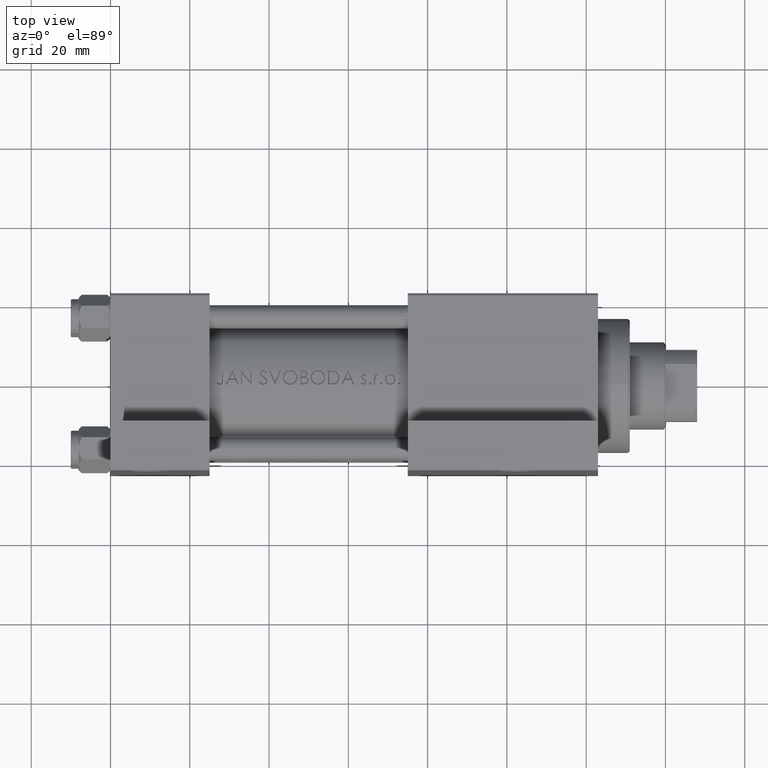
[diagram: clean part render]
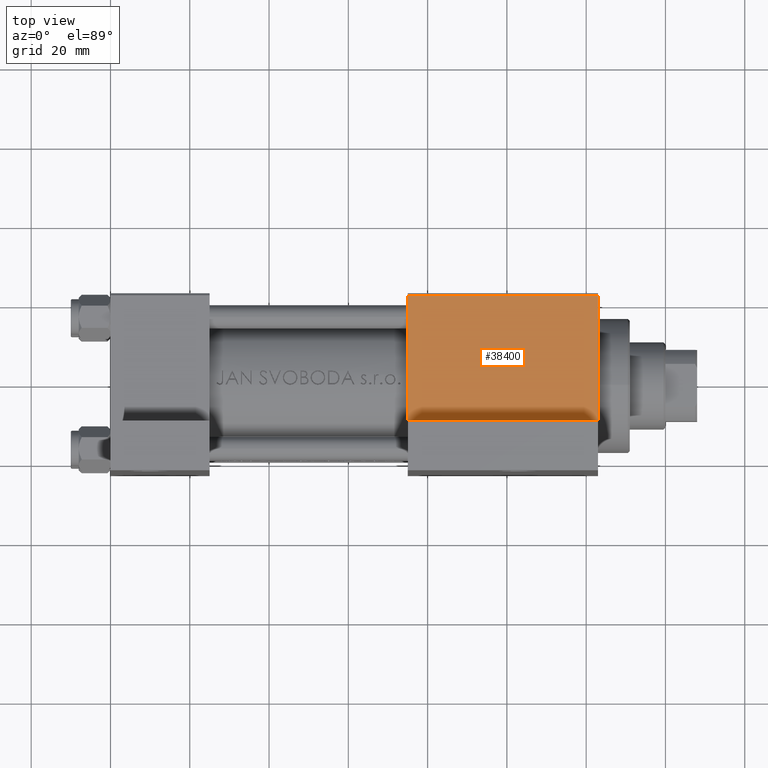
[diagram: same view with one face highlighted and labeled with its STEP entity id]
A machine part, top view. The second image highlights one B-rep face of the part: STEP entity #38400.
In plain terms, the highlighted planar face has unit normal (0, 0, -1).
Its self-contained STEP definition (entity closure, byte-faithful):
#603 = VECTOR ( 'NONE', #20472, 1000.000000000000000 ) ;
#1151 = CARTESIAN_POINT ( 'NONE',  ( 123.0000000000000142, -22.49999999999999645, 21.99999999999997868 ) ) ;
#1932 = EDGE_LOOP ( 'NONE', ( #25240, #3656, #30712, #42790 ) ) ;
#3656 = ORIENTED_EDGE ( 'NONE', *, *, #37886, .T. ) ;
#7783 = DIRECTION ( 'NONE',  ( -0.000000000000000000, 1.000000000000000000, 0.000000000000000000 ) ) ;
#7843 = VECTOR ( 'NONE', #30961, 1000.000000000000000 ) ;
#10547 = CARTESIAN_POINT ( 'NONE',  ( 123.0000000000000142, -22.49999999999999645, 21.99999999999997868 ) ) ;
#10625 = LINE ( 'NONE', #21455, #41648 ) ;
#15066 = VERTEX_POINT ( 'NONE', #42219 ) ;
#15683 = EDGE_CURVE ( 'NONE', #19564, #30237, #31991, .T. ) ;
#16296 = LINE ( 'NONE', #1151, #7843 ) ;
#18831 = DIRECTION ( 'NONE',  ( 1.000000000000000000, -1.445602896647340149E-16, 0.000000000000000000 ) ) ;
#19564 = VERTEX_POINT ( 'NONE', #20748 ) ;
#20472 = DIRECTION ( 'NONE',  ( 0.000000000000000000, 0.000000000000000000, -1.000000000000000000 ) ) ;
#20748 = CARTESIAN_POINT ( 'NONE',  ( 75.00000000000001421, -22.49999999999999645, 21.99999999999997868 ) ) ;
#21455 = CARTESIAN_POINT ( 'NONE',  ( 123.0000000000000142, -22.49999999999999645, 22.49999999999999289 ) ) ;
#21930 = DIRECTION ( 'NONE',  ( 0.000000000000000000, 0.000000000000000000, -1.000000000000000000 ) ) ;
#22459 = AXIS2_PLACEMENT_3D ( 'NONE', #44338, #7783, #30132 ) ;
#24834 = CARTESIAN_POINT ( 'NONE',  ( 75.00000000000001421, -22.50000000000000000, -9.999999999999998224 ) ) ;
#25240 = ORIENTED_EDGE ( 'NONE', *, *, #38639, .F. ) ;
#25991 = EDGE_CURVE ( 'NONE', #30237, #15066, #44094, .T. ) ;
#30132 = DIRECTION ( 'NONE',  ( 0.000000000000000000, -0.000000000000000000, 1.000000000000000000 ) ) ;
#30237 = VERTEX_POINT ( 'NONE', #24834 ) ;
#30712 = ORIENTED_EDGE ( 'NONE', *, *, #15683, .T. ) ;
#30961 = DIRECTION ( 'NONE',  ( -1.000000000000000000, 0.000000000000000000, 0.000000000000000000 ) ) ;
#31037 = CARTESIAN_POINT ( 'NONE',  ( 75.00000000000001421, -22.49999999999999645, 22.49999999999999289 ) ) ;
#31525 = VERTEX_POINT ( 'NONE', #10547 ) ;
#31991 = LINE ( 'NONE', #31037, #603 ) ;
#33717 = CARTESIAN_POINT ( 'NONE',  ( 75.00000000000001421, -22.50000000000000000, -9.999999999999998224 ) ) ;
#37822 = FACE_OUTER_BOUND ( 'NONE', #1932, .T. ) ;
#37886 = EDGE_CURVE ( 'NONE', #31525, #19564, #16296, .T. ) ;
#38400 = ADVANCED_FACE ( 'NONE', ( #37822 ), #40718, .F. ) ;
#38639 = EDGE_CURVE ( 'NONE', #31525, #15066, #10625, .T. ) ;
#40718 = PLANE ( 'NONE',  #22459 ) ;
#41648 = VECTOR ( 'NONE', #21930, 1000.000000000000000 ) ;
#42219 = CARTESIAN_POINT ( 'NONE',  ( 123.0000000000000142, -22.49999999999999645, -9.999999999999980460 ) ) ;
#42790 = ORIENTED_EDGE ( 'NONE', *, *, #25991, .T. ) ;
#44094 = LINE ( 'NONE', #33717, #46919 ) ;
#44338 = CARTESIAN_POINT ( 'NONE',  ( 123.0000000000000142, -22.49999999999999645, 22.49999999999999289 ) ) ;
#46919 = VECTOR ( 'NONE', #18831, 1000.000000000000000 ) ;